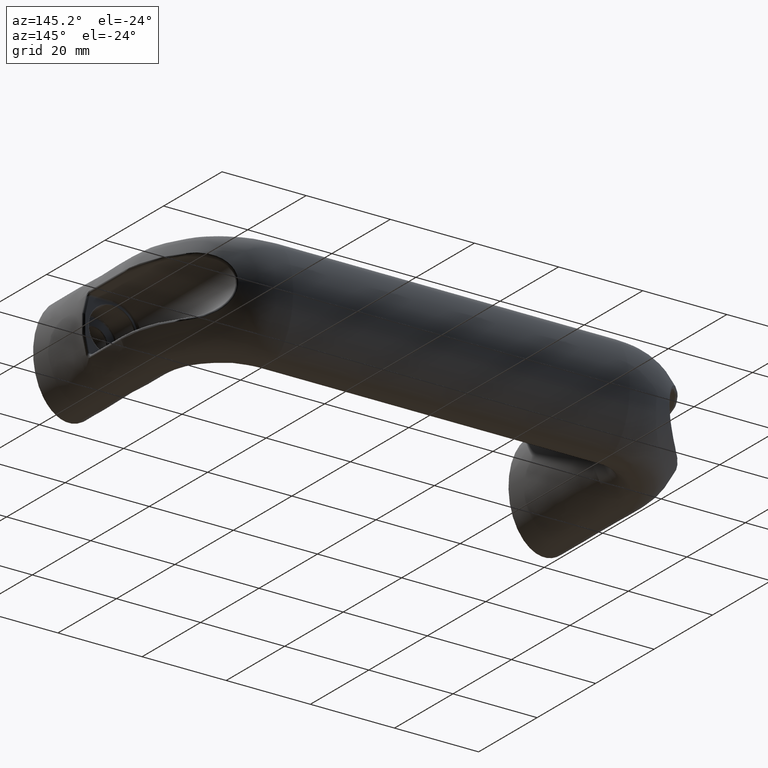
[diagram: clean part render]
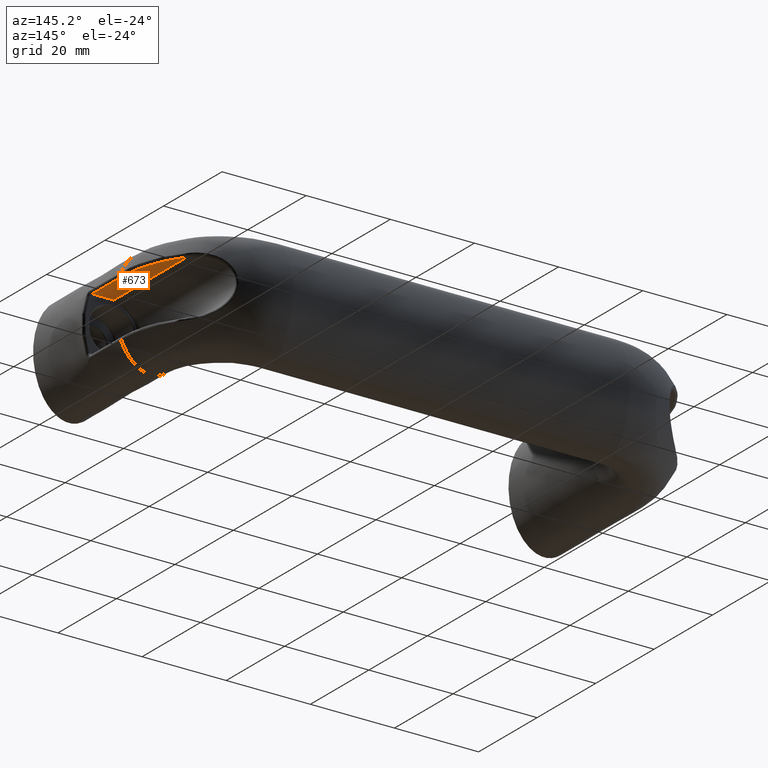
[diagram: same view with one face highlighted and labeled with its STEP entity id]
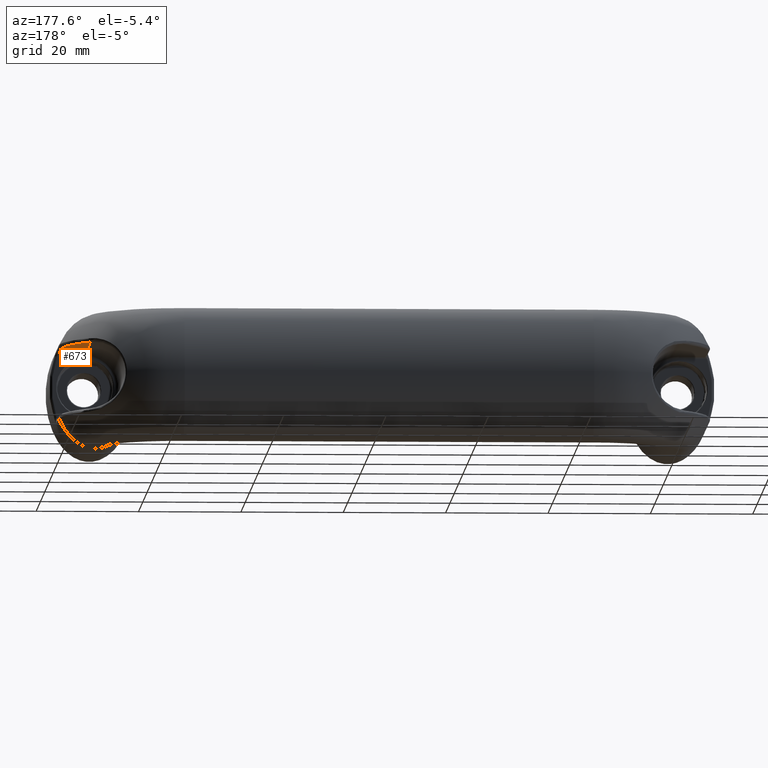
[diagram: same view with one face highlighted and labeled with its STEP entity id]
A machine part, auxiliary view. The second image highlights one B-rep face of the part: STEP entity #673.
A second angle (auxiliary view) of the same face is appended — the face is thin or edge-on in the first view.
In plain terms, the highlighted planar face has unit normal (0, 0, 1).
Its self-contained STEP definition (entity closure, byte-faithful):
#58=LINE('',#1093,#80);
#59=LINE('',#1095,#81);
#60=LINE('',#1096,#82);
#80=VECTOR('',#834,10.5);
#81=VECTOR('',#835,5.11900367569199);
#82=VECTOR('',#836,25.0082159809617);
#154=PLANE('',#730);
#166=FACE_OUTER_BOUND('',#216,.T.);
#216=EDGE_LOOP('',(#491,#492,#493,#494));
#280=B_SPLINE_CURVE_WITH_KNOTS('',3,(#1087,#1088,#1089,#1090,#1091),
 .UNSPECIFIED.,.F.,.F.,(4,1,4),(0.,0.896194853491563,1.56834099361024),
 .UNSPECIFIED.);
#327=VERTEX_POINT('',#1085);
#328=VERTEX_POINT('',#1086);
#329=VERTEX_POINT('',#1092);
#330=VERTEX_POINT('',#1094);
#391=EDGE_CURVE('',#327,#328,#280,.T.);
#392=EDGE_CURVE('',#329,#327,#58,.T.);
#393=EDGE_CURVE('',#330,#329,#59,.T.);
#394=EDGE_CURVE('',#328,#330,#60,.T.);
#491=ORIENTED_EDGE('',*,*,#391,.F.);
#492=ORIENTED_EDGE('',*,*,#392,.F.);
#493=ORIENTED_EDGE('',*,*,#393,.F.);
#494=ORIENTED_EDGE('',*,*,#394,.F.);
#673=ADVANCED_FACE('',(#166),#154,.F.);
#730=AXIS2_PLACEMENT_3D('',#1084,#832,#833);
#832=DIRECTION('center_axis',(0.,0.,1.));
#833=DIRECTION('ref_axis',(-1.,0.,0.));
#834=DIRECTION('',(0.,1.,0.));
#835=DIRECTION('',(1.,0.,0.));
#836=DIRECTION('',(0.,-1.,0.));
#1084=CARTESIAN_POINT('Origin',(120.361215932168,53.,6.50000000000001));
#1085=CARTESIAN_POINT('',(119.619003675692,28.,6.50000000000001));
#1086=CARTESIAN_POINT('',(114.50000000009,42.5082159809617,6.50000000000001));
#1087=CARTESIAN_POINT('Ctrl Pts',(119.619003675692,28.,6.50000000000001));
#1088=CARTESIAN_POINT('Ctrl Pts',(119.619003675692,30.9873161783052,6.50000000000001));
#1089=CARTESIAN_POINT('Ctrl Pts',(118.592075387086,36.2133656440559,6.50000000000001));
#1090=CARTESIAN_POINT('Ctrl Pts',(115.906006577914,40.7638169154464,6.50000000000001));
#1091=CARTESIAN_POINT('Ctrl Pts',(114.500000000179,42.5082159809617,6.50000000000001));
#1092=CARTESIAN_POINT('',(119.619003675692,17.5,6.50000000000001));
#1093=CARTESIAN_POINT('',(119.619003675692,28.,6.50000000000001));
#1094=CARTESIAN_POINT('',(114.5,17.5,6.50000000000001));
#1095=CARTESIAN_POINT('',(117.555607966084,17.5,6.50000000000001));
#1096=CARTESIAN_POINT('',(114.5,53.,6.50000000000001));